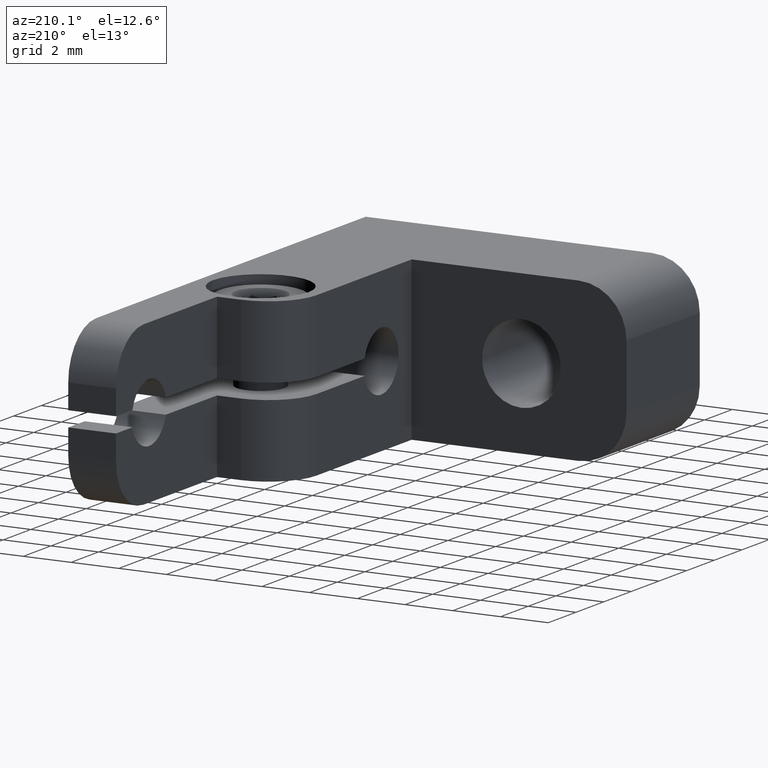
[diagram: clean part render]
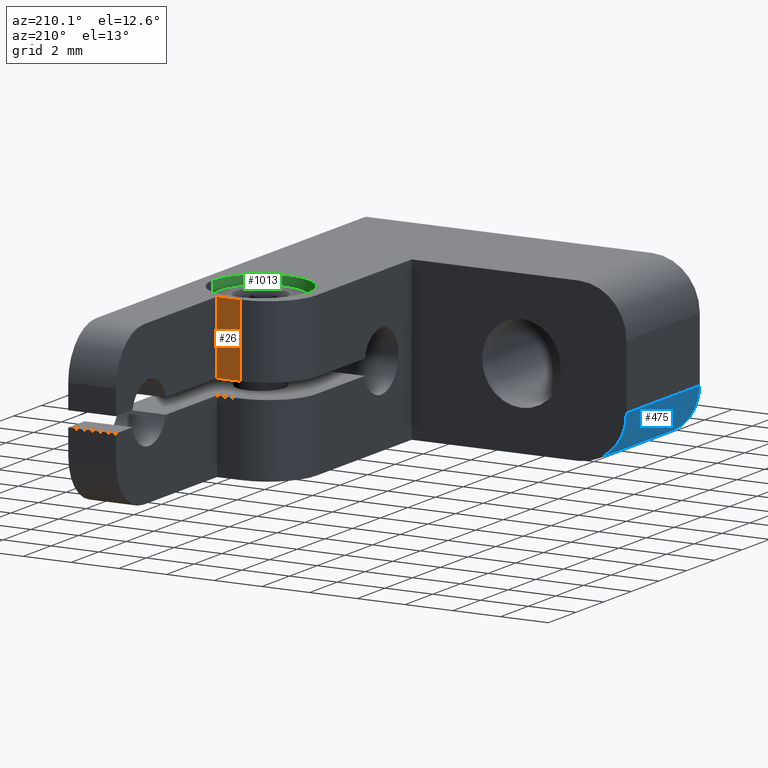
[diagram: same view with three faces highlighted in distinct colors, each labeled with its STEP entity id]
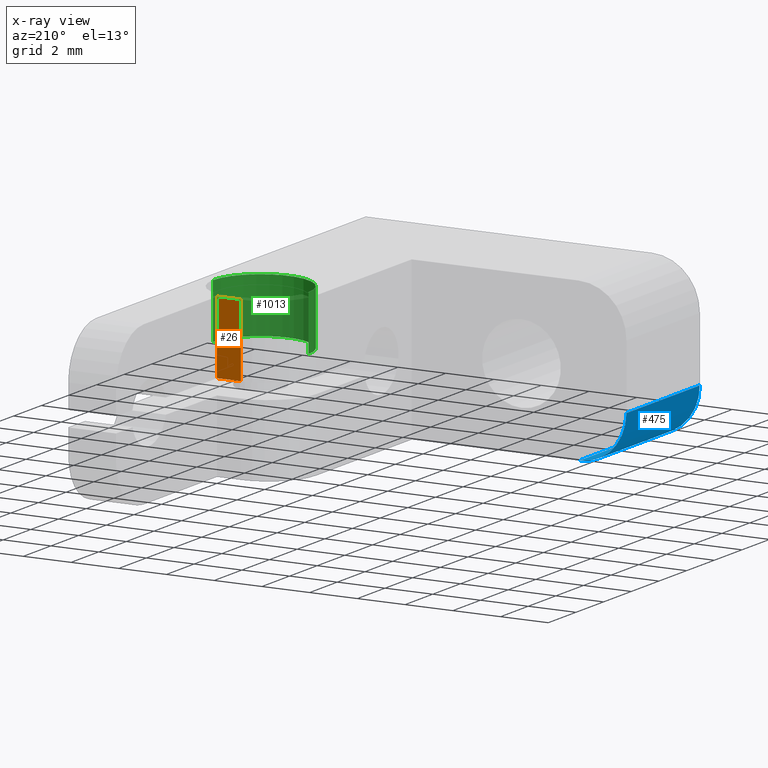
[diagram: x-ray of the same camera — body ghosted, the three highlighted faces saturated]
A machine part, auxiliary view with three faces highlighted in distinct colors.
The next image is the same camera in x-ray (body ghosted, the three faces saturated) — at least one of them is partly hidden behind the body in this view.
Their STEP definitions:

[orange] entity #26 — the highlighted planar face has unit normal (0, -1, 0).
#26 = ADVANCED_FACE ( 'NONE', ( #970 ), #1311, .F. ) ;
#106 = LINE ( 'NONE', #614, #879 ) ;
#184 = CARTESIAN_POINT ( 'NONE',  ( -3.000000000000000888, 14.19999999999999929, 0.3199999999999994515 ) ) ;
#360 = EDGE_LOOP ( 'NONE', ( #504, #1273, #533, #1164 ) ) ;
#425 = EDGE_CURVE ( 'NONE', #509, #1201, #1972, .T. ) ;
#492 = VERTEX_POINT ( 'NONE', #184 ) ;
#504 = ORIENTED_EDGE ( 'NONE', *, *, #1826, .F. ) ;
#509 = VERTEX_POINT ( 'NONE', #1063 ) ;
#533 = ORIENTED_EDGE ( 'NONE', *, *, #1491, .F. ) ;
#592 = CARTESIAN_POINT ( 'NONE',  ( -3.000000000000000888, 14.19999999999999929, 3.350000000000000089 ) ) ;
#614 = CARTESIAN_POINT ( 'NONE',  ( -3.000000000000000888, 14.19999999999999929, 3.350000000000000089 ) ) ;
#659 = VERTEX_POINT ( 'NONE', #592 ) ;
#722 = DIRECTION ( 'NONE',  ( -1.000000000000000000, -0.000000000000000000, -0.000000000000000000 ) ) ;
#802 = DIRECTION ( 'NONE',  ( -0.000000000000000000, -0.000000000000000000, -1.000000000000000000 ) ) ;
#803 = DIRECTION ( 'NONE',  ( 1.000000000000000000, 0.000000000000000000, 0.000000000000000000 ) ) ;
#819 = DIRECTION ( 'NONE',  ( 0.000000000000000000, -1.000000000000000000, 0.000000000000000000 ) ) ;
#826 = CARTESIAN_POINT ( 'NONE',  ( -1.999999999999999112, 14.19999999999999929, 3.350000000000000089 ) ) ;
#829 = CARTESIAN_POINT ( 'NONE',  ( -5.000000000000000888, 14.19999999999999929, 3.350000000000000089 ) ) ;
#879 = VECTOR ( 'NONE', #1254, 1000.000000000000000 ) ;
#970 = FACE_OUTER_BOUND ( 'NONE', #360, .T. ) ;
#981 = VECTOR ( 'NONE', #803, 1000.000000000000000 ) ;
#1063 = CARTESIAN_POINT ( 'NONE',  ( -1.999999999999999112, 14.19999999999999929, 3.350000000000000089 ) ) ;
#1162 = VECTOR ( 'NONE', #722, 1000.000000000000000 ) ;
#1164 = ORIENTED_EDGE ( 'NONE', *, *, #425, .T. ) ;
#1201 = VERTEX_POINT ( 'NONE', #2095 ) ;
#1254 = DIRECTION ( 'NONE',  ( -0.000000000000000000, -0.000000000000000000, 1.000000000000000000 ) ) ;
#1273 = ORIENTED_EDGE ( 'NONE', *, *, #1577, .T. ) ;
#1311 = PLANE ( 'NONE',  #1625 ) ;
#1416 = VECTOR ( 'NONE', #802, 1000.000000000000000 ) ;
#1491 = EDGE_CURVE ( 'NONE', #509, #659, #2080, .T. ) ;
#1512 = CARTESIAN_POINT ( 'NONE',  ( -14.00099999999999945, 14.19999999999999929, 0.3199999999999994515 ) ) ;
#1577 = EDGE_CURVE ( 'NONE', #492, #659, #106, .T. ) ;
#1625 = AXIS2_PLACEMENT_3D ( 'NONE', #829, #819, #1989 ) ;
#1821 = LINE ( 'NONE', #1512, #981 ) ;
#1826 = EDGE_CURVE ( 'NONE', #492, #1201, #1821, .T. ) ;
#1881 = CARTESIAN_POINT ( 'NONE',  ( -5.000000000000000888, 14.19999999999999929, 3.350000000000000089 ) ) ;
#1972 = LINE ( 'NONE', #826, #1416 ) ;
#1989 = DIRECTION ( 'NONE',  ( 0.000000000000000000, -0.000000000000000000, -1.000000000000000000 ) ) ;
#2080 = LINE ( 'NONE', #1881, #1162 ) ;
#2095 = CARTESIAN_POINT ( 'NONE',  ( -1.999999999999998224, 14.19999999999999929, 0.3199999999999994515 ) ) ;

[blue] entity #475 — the highlighted cylindrical surface (partial cylindrical patch) has radius 2 mm, axis along (0, 1, 0).
#1 = CARTESIAN_POINT ( 'NONE',  ( -12.00000000000000000, 0.000000000000000000, -1.350000000000000089 ) ) ;
#36 = ORIENTED_EDGE ( 'NONE', *, *, #1085, .F. ) ;
#110 = DIRECTION ( 'NONE',  ( 0.000000000000000000, -1.000000000000000000, 0.000000000000000000 ) ) ;
#150 = CARTESIAN_POINT ( 'NONE',  ( -14.00000000000000000, 0.000000000000000000, -1.350000000000000089 ) ) ;
#157 = VECTOR ( 'NONE', #110, 1000.000000000000000 ) ;
#264 = DIRECTION ( 'NONE',  ( -0.000000000000000000, 1.000000000000000000, -0.000000000000000000 ) ) ;
#309 = DIRECTION ( 'NONE',  ( -0.000000000000000000, -1.000000000000000000, 0.000000000000000000 ) ) ;
#332 = FACE_OUTER_BOUND ( 'NONE', #372, .T. ) ;
#372 = EDGE_LOOP ( 'NONE', ( #1860, #36, #1864, #998 ) ) ;
#475 = ADVANCED_FACE ( 'NONE', ( #332 ), #1341, .T. ) ;
#649 = EDGE_CURVE ( 'NONE', #1631, #1847, #1410, .T. ) ;
#690 = AXIS2_PLACEMENT_3D ( 'NONE', #1, #309, #964 ) ;
#761 = CIRCLE ( 'NONE', #690, 2.000000000000000000 ) ;
#767 = CARTESIAN_POINT ( 'NONE',  ( -12.00000000000000000, 5.299999999999999822, -3.350000000000000089 ) ) ;
#897 = EDGE_CURVE ( 'NONE', #1847, #1218, #761, .T. ) ;
#935 = CARTESIAN_POINT ( 'NONE',  ( -12.00000000000000000, 5.299999999999999822, -1.350000000000000089 ) ) ;
#951 = CARTESIAN_POINT ( 'NONE',  ( -12.00000000000000000, 5.299999999999999822, -3.350000000000000089 ) ) ;
#964 = DIRECTION ( 'NONE',  ( 0.000000000000000000, 0.000000000000000000, 1.000000000000000000 ) ) ;
#998 = ORIENTED_EDGE ( 'NONE', *, *, #649, .F. ) ;
#1001 = DIRECTION ( 'NONE',  ( 0.000000000000000000, 0.000000000000000000, 1.000000000000000000 ) ) ;
#1085 = EDGE_CURVE ( 'NONE', #1218, #1348, #1761, .T. ) ;
#1103 = CARTESIAN_POINT ( 'NONE',  ( -12.00000000000000000, 0.000000000000000000, -3.350000000000000089 ) ) ;
#1218 = VERTEX_POINT ( 'NONE', #1103 ) ;
#1271 = DIRECTION ( 'NONE',  ( -0.000000000000000000, 1.000000000000000000, -0.000000000000000000 ) ) ;
#1329 = DIRECTION ( 'NONE',  ( -0.000000000000000000, 1.000000000000000000, 0.000000000000000000 ) ) ;
#1341 = CYLINDRICAL_SURFACE ( 'NONE', #1982, 2.000000000000000000 ) ;
#1348 = VERTEX_POINT ( 'NONE', #951 ) ;
#1410 = LINE ( 'NONE', #2107, #157 ) ;
#1576 = CIRCLE ( 'NONE', #2112, 2.000000000000000000 ) ;
#1631 = VERTEX_POINT ( 'NONE', #1642 ) ;
#1642 = CARTESIAN_POINT ( 'NONE',  ( -14.00000000000000000, 5.299999999999999822, -1.350000000000000089 ) ) ;
#1648 = EDGE_CURVE ( 'NONE', #1348, #1631, #1576, .T. ) ;
#1761 = LINE ( 'NONE', #767, #2175 ) ;
#1847 = VERTEX_POINT ( 'NONE', #150 ) ;
#1860 = ORIENTED_EDGE ( 'NONE', *, *, #1648, .F. ) ;
#1864 = ORIENTED_EDGE ( 'NONE', *, *, #897, .F. ) ;
#1952 = DIRECTION ( 'NONE',  ( 0.000000000000000000, 0.000000000000000000, -1.000000000000000000 ) ) ;
#1982 = AXIS2_PLACEMENT_3D ( 'NONE', #2022, #1329, #1001 ) ;
#2022 = CARTESIAN_POINT ( 'NONE',  ( -12.00000000000000000, 0.000000000000000000, -1.350000000000000089 ) ) ;
#2107 = CARTESIAN_POINT ( 'NONE',  ( -14.00000000000000000, 0.000000000000000000, -1.350000000000000089 ) ) ;
#2112 = AXIS2_PLACEMENT_3D ( 'NONE', #935, #1271, #1952 ) ;
#2175 = VECTOR ( 'NONE', #264, 1000.000000000000000 ) ;

[green] entity #1013 — the highlighted cylindrical surface (partial cylindrical patch) has radius 2 mm, axis along (0, 0, 1).
#17 = ORIENTED_EDGE ( 'NONE', *, *, #1909, .T. ) ;
#73 = CIRCLE ( 'NONE', #1289, 2.000000000000000000 ) ;
#85 = DIRECTION ( 'NONE',  ( 1.000000000000000000, 0.000000000000000000, 0.000000000000000000 ) ) ;
#97 = AXIS2_PLACEMENT_3D ( 'NONE', #846, #552, #860 ) ;
#136 = CARTESIAN_POINT ( 'NONE',  ( -0.5000000000000008882, 11.90000000000000036, 1.050000000000000044 ) ) ;
#143 = VERTEX_POINT ( 'NONE', #1737 ) ;
#151 = ORIENTED_EDGE ( 'NONE', *, *, #1407, .F. ) ;
#185 = CARTESIAN_POINT ( 'NONE',  ( -4.500000000000000888, 11.90000000000000036, 3.350000000000000089 ) ) ;
#253 = LINE ( 'NONE', #1590, #2138 ) ;
#274 = CARTESIAN_POINT ( 'NONE',  ( -4.500000000000000888, 11.90000000000000036, 3.350000000000000089 ) ) ;
#291 = ORIENTED_EDGE ( 'NONE', *, *, #1839, .T. ) ;
#312 = DIRECTION ( 'NONE',  ( -0.000000000000000000, -0.000000000000000000, 1.000000000000000000 ) ) ;
#319 = CARTESIAN_POINT ( 'NONE',  ( -2.500000000000000444, 11.90000000000000036, 3.350000000000000089 ) ) ;
#376 = CYLINDRICAL_SURFACE ( 'NONE', #97, 2.000000000000000000 ) ;
#405 = VERTEX_POINT ( 'NONE', #136 ) ;
#423 = AXIS2_PLACEMENT_3D ( 'NONE', #740, #907, #85 ) ;
#466 = VERTEX_POINT ( 'NONE', #2178 ) ;
#532 = CIRCLE ( 'NONE', #423, 1.999999999999999556 ) ;
#552 = DIRECTION ( 'NONE',  ( -0.000000000000000000, -0.000000000000000000, 1.000000000000000000 ) ) ;
#684 = ORIENTED_EDGE ( 'NONE', *, *, #1177, .F. ) ;
#740 = CARTESIAN_POINT ( 'NONE',  ( -2.500000000000000444, 11.90000000000000036, 1.050000000000000044 ) ) ;
#756 = DIRECTION ( 'NONE',  ( -0.000000000000000000, -0.000000000000000000, 1.000000000000000000 ) ) ;
#844 = VECTOR ( 'NONE', #849, 1000.000000000000000 ) ;
#846 = CARTESIAN_POINT ( 'NONE',  ( -2.500000000000000444, 11.90000000000000036, 3.350000000000000089 ) ) ;
#849 = DIRECTION ( 'NONE',  ( -0.000000000000000000, -0.000000000000000000, 1.000000000000000000 ) ) ;
#860 = DIRECTION ( 'NONE',  ( 1.000000000000000000, 0.000000000000000000, 0.000000000000000000 ) ) ;
#907 = DIRECTION ( 'NONE',  ( -0.000000000000000000, -0.000000000000000000, 1.000000000000000000 ) ) ;
#1013 = ADVANCED_FACE ( 'NONE', ( #1681 ), #376, .F. ) ;
#1177 = EDGE_CURVE ( 'NONE', #405, #466, #253, .T. ) ;
#1289 = AXIS2_PLACEMENT_3D ( 'NONE', #319, #312, #1492 ) ;
#1407 = EDGE_CURVE ( 'NONE', #143, #405, #532, .T. ) ;
#1492 = DIRECTION ( 'NONE',  ( 1.000000000000000000, 0.000000000000000000, 0.000000000000000000 ) ) ;
#1590 = CARTESIAN_POINT ( 'NONE',  ( -0.5000000000000004441, 11.90000000000000036, 3.350000000000000089 ) ) ;
#1681 = FACE_OUTER_BOUND ( 'NONE', #2066, .T. ) ;
#1687 = LINE ( 'NONE', #185, #844 ) ;
#1737 = CARTESIAN_POINT ( 'NONE',  ( -4.500000000000000888, 11.90000000000000036, 1.050000000000000044 ) ) ;
#1839 = EDGE_CURVE ( 'NONE', #2103, #466, #73, .T. ) ;
#1909 = EDGE_CURVE ( 'NONE', #143, #2103, #1687, .T. ) ;
#2066 = EDGE_LOOP ( 'NONE', ( #151, #17, #291, #684 ) ) ;
#2103 = VERTEX_POINT ( 'NONE', #274 ) ;
#2138 = VECTOR ( 'NONE', #756, 1000.000000000000000 ) ;
#2178 = CARTESIAN_POINT ( 'NONE',  ( -0.5000000000000004441, 11.90000000000000036, 3.350000000000000089 ) ) ;